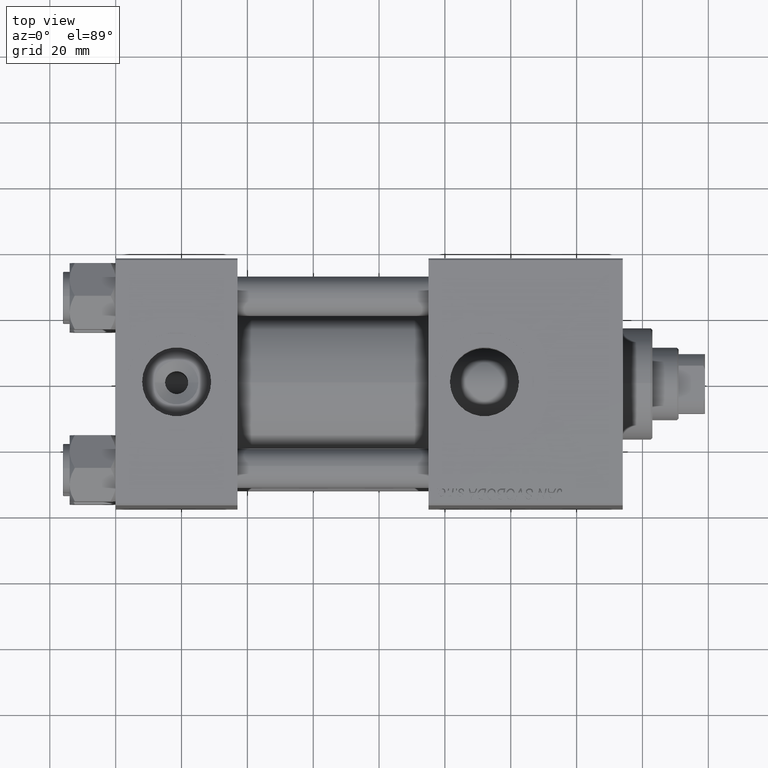
[diagram: clean part render]
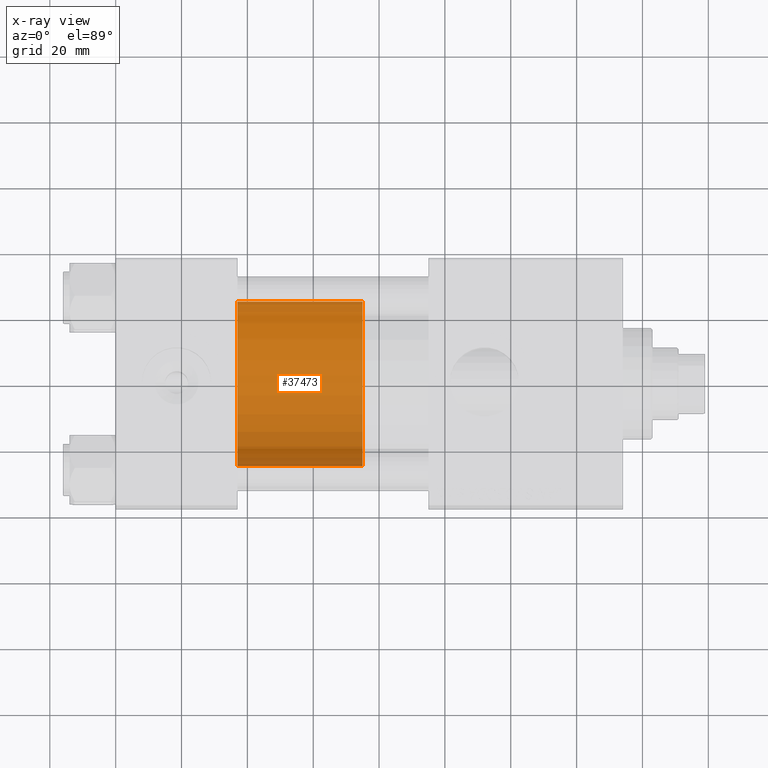
[diagram: x-ray — body ghosted, one internal face saturated and labeled with its STEP entity id]
A machine part, top view, then the same camera in x-ray: the body is ghosted and one INTERNAL B-rep face — a face not visible from any outside direction — is saturated and labeled: STEP entity #37473.
In plain terms, the highlighted cylindrical surface (partial cylindrical patch) has radius 25 mm, axis along (-1, 0, 0).
Its self-contained STEP definition (entity closure, byte-faithful):
#848 = CIRCLE ( 'NONE', #23526, 25.00000000000000000 ) ;
#1475 = ORIENTED_EDGE ( 'NONE', *, *, #22852, .T. ) ;
#2134 = DIRECTION ( 'NONE',  ( -0.000000000000000000, -0.000000000000000000, -1.000000000000000000 ) ) ;
#3589 = CARTESIAN_POINT ( 'NONE',  ( 0.000000000000000000, 0.000000000000000000, 0.000000000000000000 ) ) ;
#3597 = AXIS2_PLACEMENT_3D ( 'NONE', #18132, #2134, #33857 ) ;
#4616 = VECTOR ( 'NONE', #40869, 1000.000000000000000 ) ;
#5086 = CARTESIAN_POINT ( 'NONE',  ( -25.00000000000000000, 0.000000000000000000, 38.00000000000000000 ) ) ;
#7121 = DIRECTION ( 'NONE',  ( 0.000000000000000000, 0.000000000000000000, 1.000000000000000000 ) ) ;
#9174 = LINE ( 'NONE', #24908, #19364 ) ;
#9498 = ORIENTED_EDGE ( 'NONE', *, *, #12033, .F. ) ;
#10310 = CARTESIAN_POINT ( 'NONE',  ( 25.00000000000000000, 3.061616997868383043E-15, 38.00000000000000000 ) ) ;
#11997 = CARTESIAN_POINT ( 'NONE',  ( 0.000000000000000000, 0.000000000000000000, 38.00000000000000000 ) ) ;
#12033 = EDGE_CURVE ( 'NONE', #44939, #16798, #12701, .T. ) ;
#12701 = LINE ( 'NONE', #5086, #4616 ) ;
#14560 = CYLINDRICAL_SURFACE ( 'NONE', #3597, 25.00000000000000000 ) ;
#15177 = CARTESIAN_POINT ( 'NONE',  ( -25.00000000000000000, 0.000000000000000000, 38.00000000000000000 ) ) ;
#15749 = CARTESIAN_POINT ( 'NONE',  ( -25.00000000000000000, 0.000000000000000000, 0.000000000000000000 ) ) ;
#16798 = VERTEX_POINT ( 'NONE', #15749 ) ;
#17210 = ORIENTED_EDGE ( 'NONE', *, *, #19858, .T. ) ;
#18132 = CARTESIAN_POINT ( 'NONE',  ( 0.000000000000000000, 0.000000000000000000, 38.00000000000000000 ) ) ;
#19364 = VECTOR ( 'NONE', #47505, 1000.000000000000000 ) ;
#19858 = EDGE_CURVE ( 'NONE', #31147, #34325, #9174, .T. ) ;
#21007 = AXIS2_PLACEMENT_3D ( 'NONE', #11997, #39158, #49823 ) ;
#22852 = EDGE_CURVE ( 'NONE', #34325, #16798, #848, .T. ) ;
#23526 = AXIS2_PLACEMENT_3D ( 'NONE', #3589, #7121, #45736 ) ;
#24908 = CARTESIAN_POINT ( 'NONE',  ( 25.00000000000000000, 3.061616997868383043E-15, 38.00000000000000000 ) ) ;
#29553 = CIRCLE ( 'NONE', #21007, 25.00000000000000000 ) ;
#31147 = VERTEX_POINT ( 'NONE', #10310 ) ;
#33857 = DIRECTION ( 'NONE',  ( -1.000000000000000000, 0.000000000000000000, 0.000000000000000000 ) ) ;
#34325 = VERTEX_POINT ( 'NONE', #44582 ) ;
#35454 = ORIENTED_EDGE ( 'NONE', *, *, #37603, .F. ) ;
#37473 = ADVANCED_FACE ( 'NONE', ( #49086 ), #14560, .T. ) ;
#37603 = EDGE_CURVE ( 'NONE', #31147, #44939, #29553, .T. ) ;
#39158 = DIRECTION ( 'NONE',  ( 0.000000000000000000, 0.000000000000000000, 1.000000000000000000 ) ) ;
#40869 = DIRECTION ( 'NONE',  ( -0.000000000000000000, -0.000000000000000000, -1.000000000000000000 ) ) ;
#44582 = CARTESIAN_POINT ( 'NONE',  ( 25.00000000000000000, 3.061616997868383043E-15, 0.000000000000000000 ) ) ;
#44939 = VERTEX_POINT ( 'NONE', #15177 ) ;
#45736 = DIRECTION ( 'NONE',  ( 1.000000000000000000, 0.000000000000000000, 0.000000000000000000 ) ) ;
#47505 = DIRECTION ( 'NONE',  ( -0.000000000000000000, -0.000000000000000000, -1.000000000000000000 ) ) ;
#49086 = FACE_OUTER_BOUND ( 'NONE', #50230, .T. ) ;
#49823 = DIRECTION ( 'NONE',  ( 1.000000000000000000, 0.000000000000000000, 0.000000000000000000 ) ) ;
#50230 = EDGE_LOOP ( 'NONE', ( #35454, #17210, #1475, #9498 ) ) ;